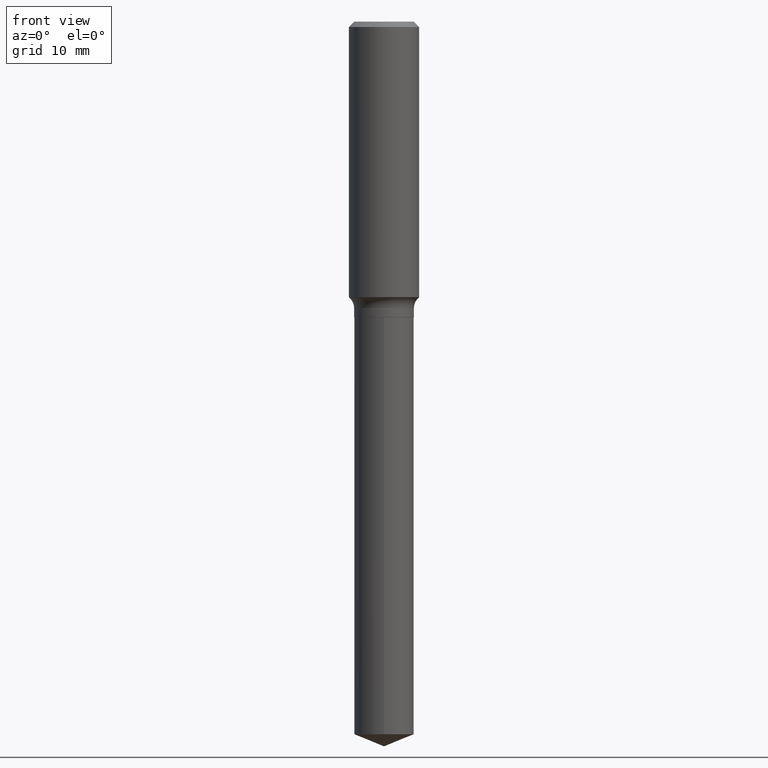
[diagram: clean part render]
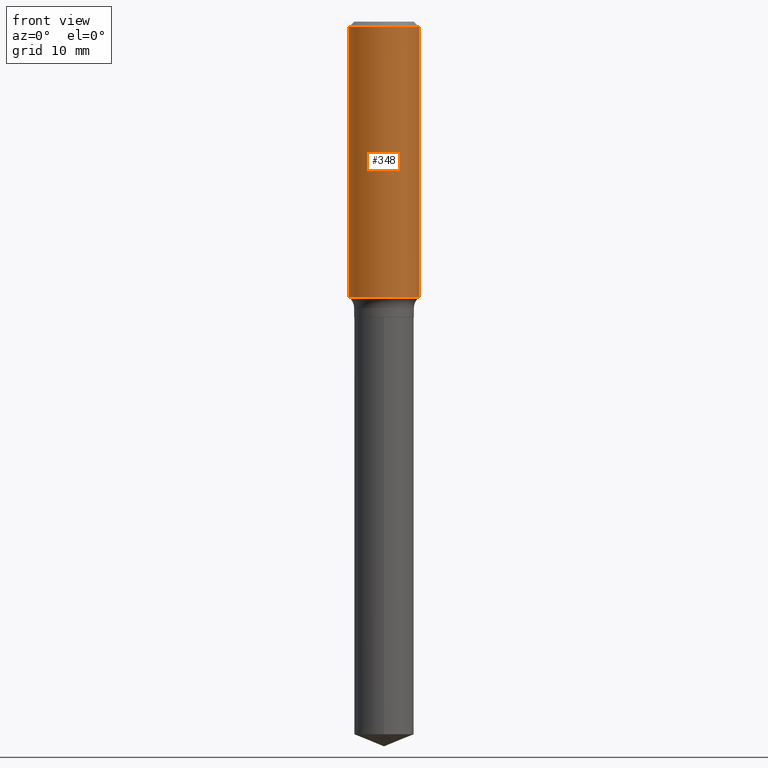
[diagram: same view with one face highlighted and labeled with its STEP entity id]
A machine part, front view. The second image highlights one B-rep face of the part: STEP entity #348.
In plain terms, the highlighted cylindrical surface (edge-blend (fillet) strip) has radius 5 mm, axis along (-0, 0, 1).
Its self-contained STEP definition (entity closure, byte-faithful):
#2 = CARTESIAN_POINT ( 'NONE',  ( 7.220858017463212113E-31, -1.030947152326916979E-16, -0.02952750000000020289 ) ) ;
#19 = DIRECTION ( 'NONE',  ( -2.445468806185136597E-29, 3.491481338843145583E-15, 1.000000000000000000 ) ) ;
#24 = EDGE_CURVE ( 'NONE', #25, #224, #87, .T. ) ;
#25 = VERTEX_POINT ( 'NONE', #468 ) ;
#26 = CARTESIAN_POINT ( 'NONE',  ( -0.1968500000000002192, -3.984016639519789812E-15, -1.541672285336354919 ) ) ;
#57 = CARTESIAN_POINT ( 'NONE',  ( 0.000000000000000000, 0.000000000000000000, 0.000000000000000000 ) ) ;
#63 = AXIS2_PLACEMENT_3D ( 'NONE', #2, #460, #491 ) ;
#72 = CARTESIAN_POINT ( 'NONE',  ( -0.1968500000000001360, 1.398703375343758182E-15, -9.682923725166790684E-30 ) ) ;
#87 = CIRCLE ( 'NONE', #63, 0.1968500000000000527 ) ;
#106 = CARTESIAN_POINT ( 'NONE',  ( 0.1968500000000000527, -1.477690918335233688E-15, -0.02952750000000020289 ) ) ;
#109 = DIRECTION ( 'NONE',  ( 1.000000000000000000, -6.982962677686266711E-15, 4.876176775795935793E-29 ) ) ;
#114 = LINE ( 'NONE', #72, #305 ) ;
#120 = EDGE_CURVE ( 'NONE', #351, #367, #332, .T. ) ;
#136 = ORIENTED_EDGE ( 'NONE', *, *, #120, .T. ) ;
#143 = CARTESIAN_POINT ( 'NONE',  ( 0.1968500000000001360, -1.374596203102542594E-15, 9.598753983154306463E-30 ) ) ;
#175 = VECTOR ( 'NONE', #405, 39.37007874015748143 ) ;
#176 = CARTESIAN_POINT ( 'NONE',  ( 3.770111483150206661E-29, -5.382720014863548388E-15, -1.541672285336354919 ) ) ;
#184 = DIRECTION ( 'NONE',  ( -2.445468806185136877E-29, 3.491481338843145188E-15, 1.000000000000000000 ) ) ;
#207 = DIRECTION ( 'NONE',  ( -2.445468806185136597E-29, 3.491481338843145583E-15, 1.000000000000000000 ) ) ;
#217 = EDGE_LOOP ( 'NONE', ( #451, #136, #462, #318 ) ) ;
#221 = EDGE_CURVE ( 'NONE', #351, #25, #114, .T. ) ;
#224 = VERTEX_POINT ( 'NONE', #106 ) ;
#305 = VECTOR ( 'NONE', #184, 39.37007874015748143 ) ;
#318 = ORIENTED_EDGE ( 'NONE', *, *, #24, .F. ) ;
#319 = DIRECTION ( 'NONE',  ( 1.000000000000000000, -6.982962677686269866E-15, 0.000000000000000000 ) ) ;
#322 = LINE ( 'NONE', #143, #175 ) ;
#326 = EDGE_CURVE ( 'NONE', #367, #224, #322, .T. ) ;
#332 = CIRCLE ( 'NONE', #360, 0.1968500000000002470 ) ;
#348 = ADVANCED_FACE ( 'NONE', ( #436 ), #442, .T. ) ;
#351 = VERTEX_POINT ( 'NONE', #26 ) ;
#360 = AXIS2_PLACEMENT_3D ( 'NONE', #176, #207, #319 ) ;
#361 = AXIS2_PLACEMENT_3D ( 'NONE', #57, #19, #109 ) ;
#367 = VERTEX_POINT ( 'NONE', #394 ) ;
#394 = CARTESIAN_POINT ( 'NONE',  ( 0.1968500000000002192, -6.757316217966091574E-15, -1.541672285336354919 ) ) ;
#405 = DIRECTION ( 'NONE',  ( -2.445468806185136877E-29, 3.491481338843145188E-15, 1.000000000000000000 ) ) ;
#436 = FACE_OUTER_BOUND ( 'NONE', #217, .T. ) ;
#442 = CYLINDRICAL_SURFACE ( 'NONE', #361, 0.1968500000000001360 ) ;
#451 = ORIENTED_EDGE ( 'NONE', *, *, #221, .F. ) ;
#460 = DIRECTION ( 'NONE',  ( -2.445468806185136597E-29, 3.491481338843145583E-15, 1.000000000000000000 ) ) ;
#462 = ORIENTED_EDGE ( 'NONE', *, *, #326, .T. ) ;
#468 = CARTESIAN_POINT ( 'NONE',  ( -0.1968500000000000527, -1.344203989704361658E-15, -0.02952750000000020289 ) ) ;
#491 = DIRECTION ( 'NONE',  ( 1.000000000000000000, -6.982962677686266711E-15, 0.000000000000000000 ) ) ;